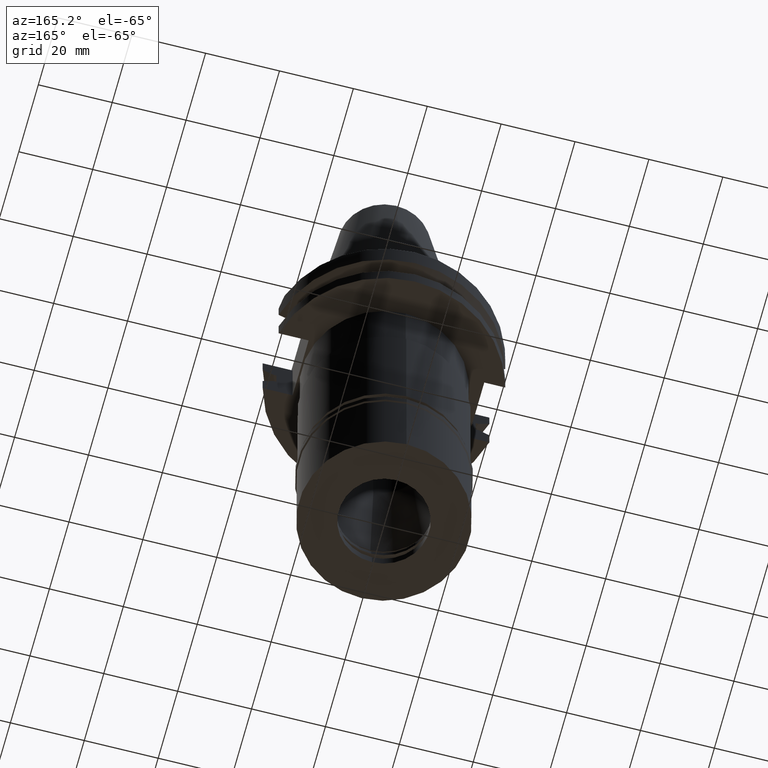
[diagram: clean part render]
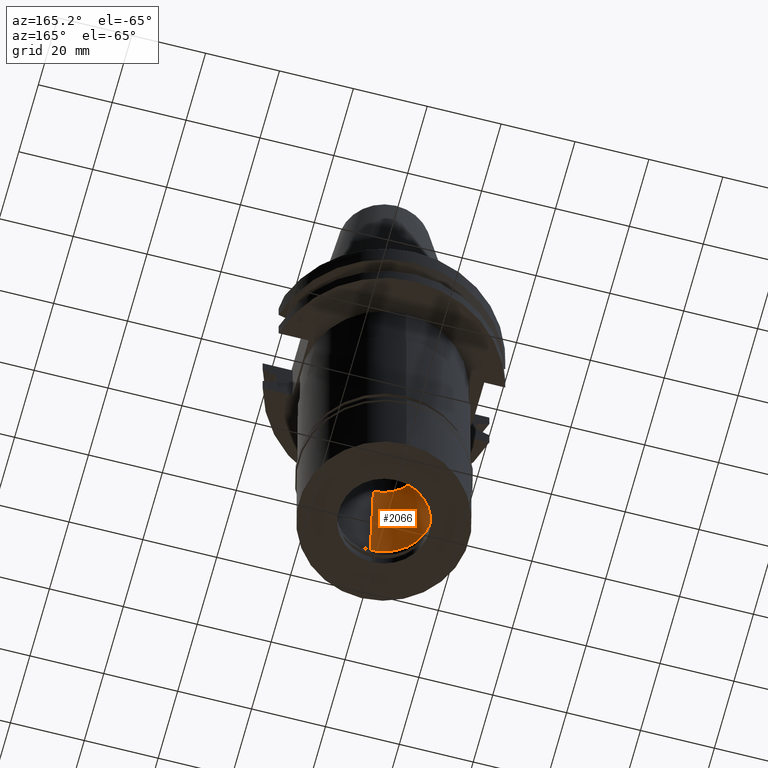
[diagram: same view with one face highlighted and labeled with its STEP entity id]
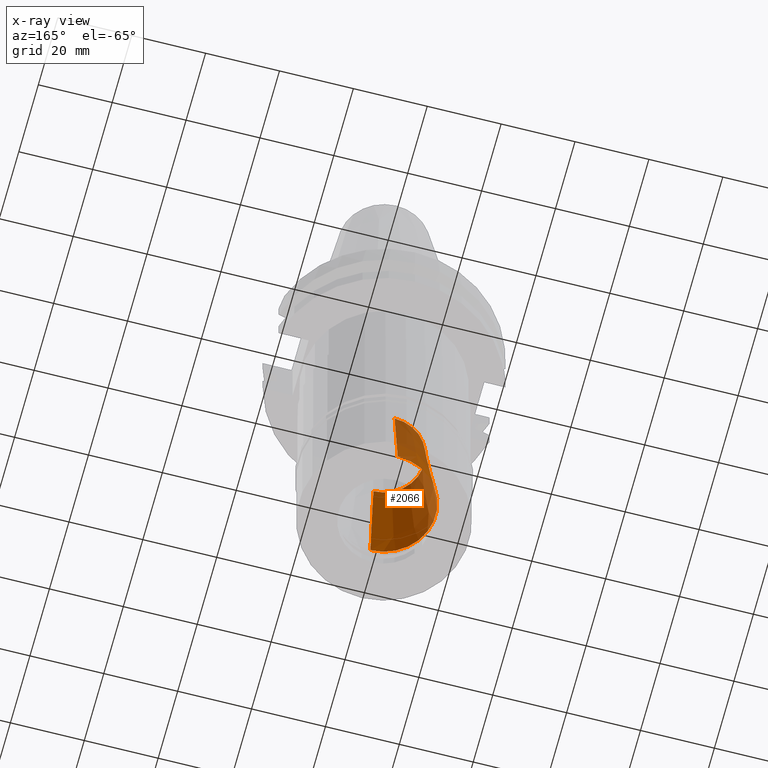
[diagram: x-ray of the same camera — body ghosted, the highlighted face saturated]
A machine part, auxiliary view. The second image highlights one B-rep face of the part: STEP entity #2066.
The next image is the same camera in x-ray: the body ghosted, the highlighted face saturated — about 23% of this face is hidden behind the body in this view.
In plain terms, the highlighted conical surface has half-angle 6 deg.
Its self-contained STEP definition (entity closure, byte-faithful):
#52 = LINE ( 'NONE', #3052, #2123 ) ;
#285 = ORIENTED_EDGE ( 'NONE', *, *, #541, .T. ) ;
#338 = CARTESIAN_POINT ( 'NONE',  ( 0.0000000000000000000, 10.84687294202000096, -60.60000000000000142 ) ) ;
#360 = CIRCLE ( 'NONE', #2594, 10.84687294202000096 ) ;
#541 = EDGE_CURVE ( 'NONE', #924, #1839, #52, .T. ) ;
#576 = CARTESIAN_POINT ( 'NONE',  ( 0.0000000000000000000, 0.0000000000000000000, -60.60000000000000142 ) ) ;
#605 = CARTESIAN_POINT ( 'NONE',  ( 0.0000000000000000000, -14.00000000000000000, -90.59999999999999432 ) ) ;
#661 = VECTOR ( 'NONE', #1430, 1000.000000000000227 ) ;
#759 = EDGE_LOOP ( 'NONE', ( #2588, #1929, #1122, #285 ) ) ;
#837 = VERTEX_POINT ( 'NONE', #605 ) ;
#919 = DIRECTION ( 'NONE',  ( 0.0000000000000000000, -1.000000000000000000, 0.0000000000000000000 ) ) ;
#924 = VERTEX_POINT ( 'NONE', #1742 ) ;
#926 = AXIS2_PLACEMENT_3D ( 'NONE', #2599, #2571, #1332 ) ;
#1067 = DIRECTION ( 'NONE',  ( 0.0000000000000000000, -0.1045284632676965891, 0.9945218953682687379 ) ) ;
#1105 = DIRECTION ( 'NONE',  ( 0.0000000000000000000, 1.000000000000000000, 0.0000000000000000000 ) ) ;
#1122 = ORIENTED_EDGE ( 'NONE', *, *, #2347, .T. ) ;
#1157 = CARTESIAN_POINT ( 'NONE',  ( 0.0000000000000000000, 0.0000000000000000000, -75.59999999999999432 ) ) ;
#1332 = DIRECTION ( 'NONE',  ( 0.0000000000000000000, -1.000000000000000000, 0.0000000000000000000 ) ) ;
#1338 = EDGE_CURVE ( 'NONE', #837, #2337, #2622, .T. ) ;
#1395 = CARTESIAN_POINT ( 'NONE',  ( 0.0000000000000000000, -14.00000000000000000, -90.59999999999999432 ) ) ;
#1430 = DIRECTION ( 'NONE',  ( 0.0000000000000000000, 0.1045284632676965891, 0.9945218953682687379 ) ) ;
#1469 = AXIS2_PLACEMENT_3D ( 'NONE', #1157, #3157, #919 ) ;
#1619 = CONICAL_SURFACE ( 'NONE', #1469, 12.42343647100999959, 0.1047197551196402399 ) ;
#1742 = CARTESIAN_POINT ( 'NONE',  ( 0.0000000000000000000, 14.00000000000000000, -90.59999999999999432 ) ) ;
#1839 = VERTEX_POINT ( 'NONE', #338 ) ;
#1929 = ORIENTED_EDGE ( 'NONE', *, *, #1338, .F. ) ;
#2066 = ADVANCED_FACE ( 'NONE', ( #2417 ), #1619, .F. ) ;
#2075 = CARTESIAN_POINT ( 'NONE',  ( 0.0000000000000000000, -10.84687294202000096, -60.60000000000000142 ) ) ;
#2123 = VECTOR ( 'NONE', #1067, 1000.000000000000227 ) ;
#2337 = VERTEX_POINT ( 'NONE', #2075 ) ;
#2347 = EDGE_CURVE ( 'NONE', #837, #924, #2957, .T. ) ;
#2361 = EDGE_CURVE ( 'NONE', #1839, #2337, #360, .T. ) ;
#2367 = DIRECTION ( 'NONE',  ( 0.0000000000000000000, 0.0000000000000000000, 1.000000000000000000 ) ) ;
#2417 = FACE_OUTER_BOUND ( 'NONE', #759, .T. ) ;
#2571 = DIRECTION ( 'NONE',  ( 0.0000000000000000000, 0.0000000000000000000, -1.000000000000000000 ) ) ;
#2588 = ORIENTED_EDGE ( 'NONE', *, *, #2361, .T. ) ;
#2594 = AXIS2_PLACEMENT_3D ( 'NONE', #576, #2367, #1105 ) ;
#2599 = CARTESIAN_POINT ( 'NONE',  ( 0.0000000000000000000, 0.0000000000000000000, -90.59999999999999432 ) ) ;
#2622 = LINE ( 'NONE', #1395, #661 ) ;
#2957 = CIRCLE ( 'NONE', #926, 14.00000000000000000 ) ;
#3052 = CARTESIAN_POINT ( 'NONE',  ( 0.0000000000000000000, 14.00000000000000000, -90.59999999999999432 ) ) ;
#3157 = DIRECTION ( 'NONE',  ( 0.0000000000000000000, 0.0000000000000000000, -1.000000000000000000 ) ) ;